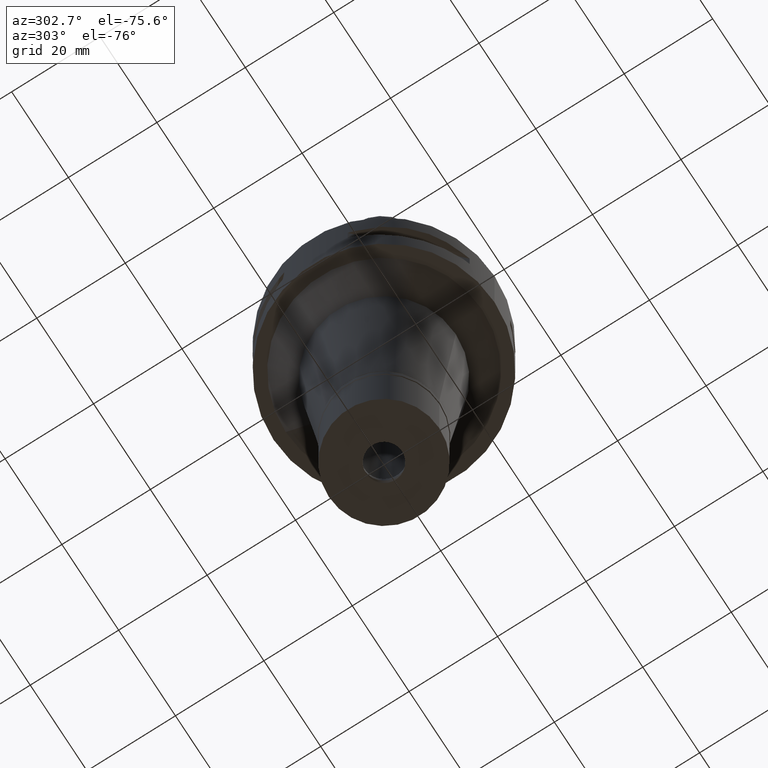
[diagram: clean part render]
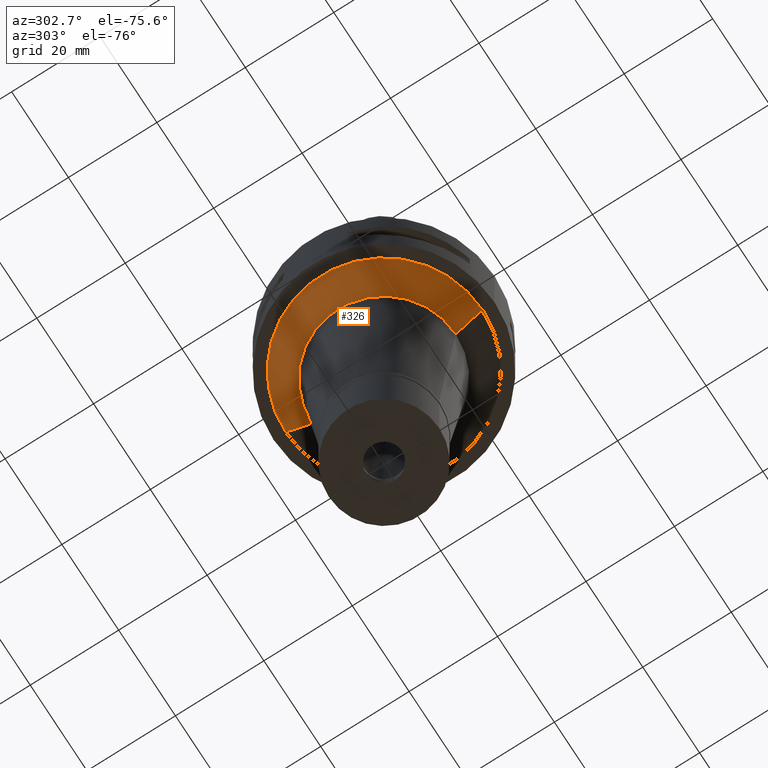
[diagram: same view with one face highlighted and labeled with its STEP entity id]
A machine part, auxiliary view. The second image highlights one B-rep face of the part: STEP entity #326.
In plain terms, the highlighted conical surface has half-angle 45 deg.
Its self-contained STEP definition (entity closure, byte-faithful):
#1 = CARTESIAN_POINT ( 'NONE',  ( 0.0000000000000000000, -16.23576593255999967, -26.00000000000000000 ) ) ;
#156 = VERTEX_POINT ( 'NONE', #502 ) ;
#326 = ADVANCED_FACE ( 'NONE', ( #4544 ), #1500, .T. ) ;
#428 = EDGE_CURVE ( 'NONE', #4068, #1888, #1507, .T. ) ;
#447 = CARTESIAN_POINT ( 'NONE',  ( 0.0000000000000000000, -22.23576593255999967, -20.00000000000000000 ) ) ;
#502 = CARTESIAN_POINT ( 'NONE',  ( 0.0000000000000000000, 22.23576593255999967, -20.00000000000000000 ) ) ;
#547 = VECTOR ( 'NONE', #1091, 1000.000000000000000 ) ;
#588 = DIRECTION ( 'NONE',  ( 0.0000000000000000000, -1.000000000000000000, 0.0000000000000000000 ) ) ;
#660 = EDGE_CURVE ( 'NONE', #4068, #156, #4704, .T. ) ;
#776 = AXIS2_PLACEMENT_3D ( 'NONE', #2485, #3188, #588 ) ;
#818 = DIRECTION ( 'NONE',  ( 0.0000000000000000000, 0.7071067811865969777, -0.7071067811864980568 ) ) ;
#1091 = DIRECTION ( 'NONE',  ( 0.0000000000000000000, -0.7071067811865969777, -0.7071067811864980568 ) ) ;
#1302 = DIRECTION ( 'NONE',  ( 0.0000000000000000000, 0.0000000000000000000, -1.000000000000000000 ) ) ;
#1493 = LINE ( 'NONE', #1919, #547 ) ;
#1500 = CONICAL_SURFACE ( 'NONE', #4146, 19.23576593255999967, 0.7853981633972997312 ) ;
#1507 = LINE ( 'NONE', #447, #4944 ) ;
#1888 = VERTEX_POINT ( 'NONE', #1 ) ;
#1919 = CARTESIAN_POINT ( 'NONE',  ( 0.0000000000000000000, 22.23576593255999967, -20.00000000000000000 ) ) ;
#2113 = ORIENTED_EDGE ( 'NONE', *, *, #3844, .F. ) ;
#2163 = EDGE_LOOP ( 'NONE', ( #2113, #3181, #4540, #3055 ) ) ;
#2366 = EDGE_CURVE ( 'NONE', #156, #3692, #1493, .T. ) ;
#2485 = CARTESIAN_POINT ( 'NONE',  ( 0.0000000000000000000, 0.0000000000000000000, -20.00000000000000000 ) ) ;
#2588 = CARTESIAN_POINT ( 'NONE',  ( 0.0000000000000000000, 0.0000000000000000000, -23.00000000000000000 ) ) ;
#3055 = ORIENTED_EDGE ( 'NONE', *, *, #2366, .T. ) ;
#3181 = ORIENTED_EDGE ( 'NONE', *, *, #428, .F. ) ;
#3188 = DIRECTION ( 'NONE',  ( 0.0000000000000000000, 0.0000000000000000000, -1.000000000000000000 ) ) ;
#3642 = CIRCLE ( 'NONE', #3963, 16.23576593255999967 ) ;
#3655 = DIRECTION ( 'NONE',  ( 0.0000000000000000000, -1.000000000000000000, 0.0000000000000000000 ) ) ;
#3692 = VERTEX_POINT ( 'NONE', #4875 ) ;
#3741 = DIRECTION ( 'NONE',  ( 0.0000000000000000000, 0.0000000000000000000, 1.000000000000000000 ) ) ;
#3844 = EDGE_CURVE ( 'NONE', #1888, #3692, #3642, .T. ) ;
#3963 = AXIS2_PLACEMENT_3D ( 'NONE', #4419, #1302, #3655 ) ;
#4068 = VERTEX_POINT ( 'NONE', #4939 ) ;
#4146 = AXIS2_PLACEMENT_3D ( 'NONE', #2588, #3741, #4891 ) ;
#4419 = CARTESIAN_POINT ( 'NONE',  ( 0.0000000000000000000, 0.0000000000000000000, -26.00000000000000000 ) ) ;
#4540 = ORIENTED_EDGE ( 'NONE', *, *, #660, .T. ) ;
#4544 = FACE_OUTER_BOUND ( 'NONE', #2163, .T. ) ;
#4704 = CIRCLE ( 'NONE', #776, 22.23576593255999967 ) ;
#4875 = CARTESIAN_POINT ( 'NONE',  ( 0.0000000000000000000, 16.23576593255999967, -26.00000000000000000 ) ) ;
#4891 = DIRECTION ( 'NONE',  ( 0.0000000000000000000, 1.000000000000000000, 0.0000000000000000000 ) ) ;
#4939 = CARTESIAN_POINT ( 'NONE',  ( 0.0000000000000000000, -22.23576593255999967, -20.00000000000000000 ) ) ;
#4944 = VECTOR ( 'NONE', #818, 1000.000000000000000 ) ;